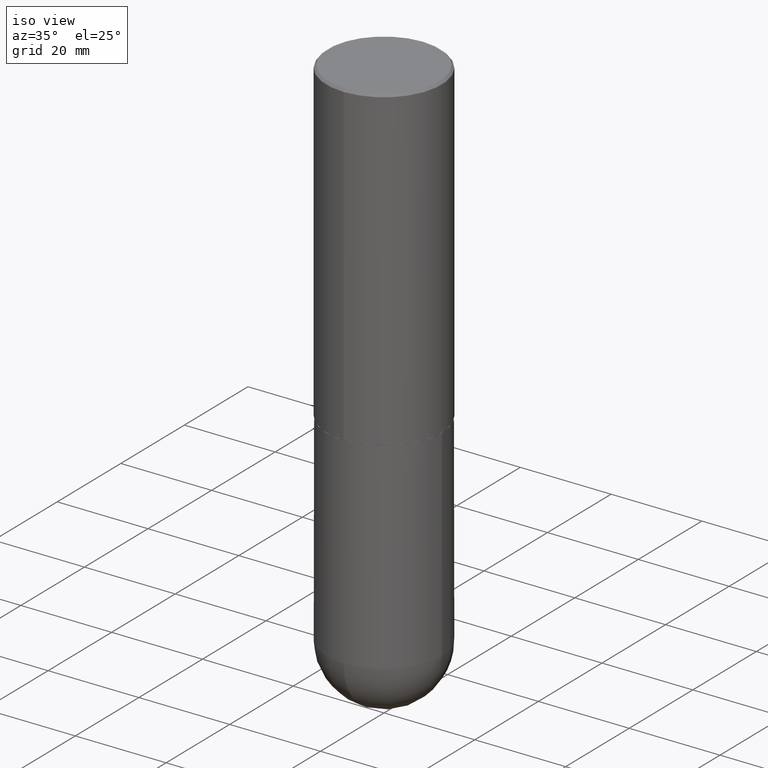
[diagram: clean part render]
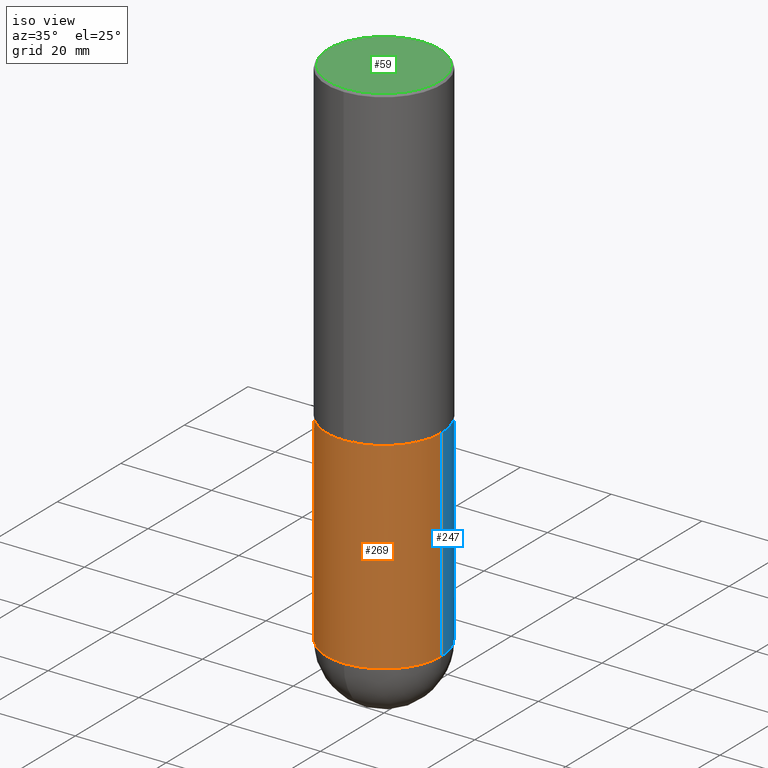
[diagram: same view with three faces highlighted in distinct colors, each labeled with its STEP entity id]
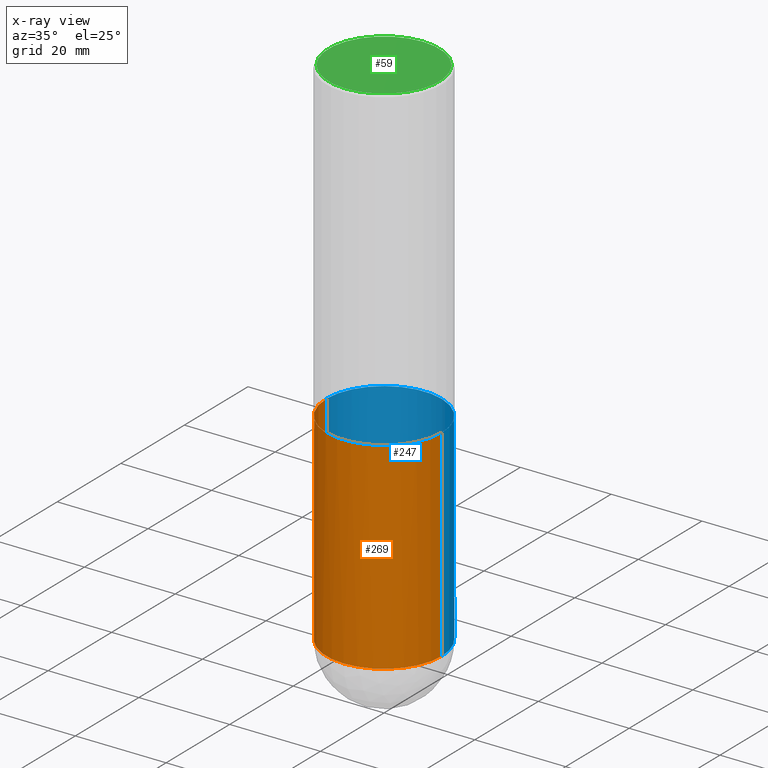
[diagram: x-ray of the same camera — body ghosted, the three highlighted faces saturated]
A machine part, iso view with three faces highlighted in distinct colors.
The next image is the same camera in x-ray (body ghosted, the three faces saturated) — at least one of them is partly hidden behind the body in this view.
Their STEP definitions:

[orange] entity #269 — the highlighted cylindrical surface (partial cylindrical patch) has radius 12.7 mm, axis along (-0, 0, 1).
#7 = VERTEX_POINT ( 'NONE', #305 ) ;
#12 = VERTEX_POINT ( 'NONE', #391 ) ;
#13 = AXIS2_PLACEMENT_3D ( 'NONE', #110, #72, #365 ) ;
#32 = ORIENTED_EDGE ( 'NONE', *, *, #64, .T. ) ;
#36 = CARTESIAN_POINT ( 'NONE',  ( 0.5000000000000000000, -3.491481338843133355E-15, 2.438088387897967896E-29 ) ) ;
#42 = ORIENTED_EDGE ( 'NONE', *, *, #153, .T. ) ;
#64 = EDGE_CURVE ( 'NONE', #88, #126, #345, .T. ) ;
#72 = DIRECTION ( 'NONE',  ( -2.445468806185136597E-29, 3.491481338843145583E-15, 1.000000000000000000 ) ) ;
#73 = CYLINDRICAL_SURFACE ( 'NONE', #13, 0.5000000000000000000 ) ;
#77 = DIRECTION ( 'NONE',  ( -2.445468806185136597E-29, 3.491481338843145583E-15, 1.000000000000000000 ) ) ;
#81 = EDGE_LOOP ( 'NONE', ( #228, #32, #134, #42, #84 ) ) ;
#84 = ORIENTED_EDGE ( 'NONE', *, *, #350, .F. ) ;
#88 = VERTEX_POINT ( 'NONE', #234 ) ;
#100 = CARTESIAN_POINT ( 'NONE',  ( -0.5000000000000000000, -9.103906174505900082E-15, -2.750000000000000000 ) ) ;
#101 = DIRECTION ( 'NONE',  ( -2.445468806185136877E-29, 3.491481338843145188E-15, 1.000000000000000000 ) ) ;
#110 = CARTESIAN_POINT ( 'NONE',  ( 0.000000000000000000, 0.000000000000000000, 0.000000000000000000 ) ) ;
#116 = EDGE_CURVE ( 'NONE', #126, #7, #121, .T. ) ;
#121 = CIRCLE ( 'NONE', #204, 0.5000000000000000000 ) ;
#125 = DIRECTION ( 'NONE',  ( 1.000000000000000000, -6.982962677686262766E-15, 0.000000000000000000 ) ) ;
#126 = VERTEX_POINT ( 'NONE', #129 ) ;
#129 = CARTESIAN_POINT ( 'NONE',  ( -3.552713678800393250E-15, -0.5000000000000160982, -4.499999999999998224 ) ) ;
#131 = VECTOR ( 'NONE', #294, 39.37007874015748143 ) ;
#134 = ORIENTED_EDGE ( 'NONE', *, *, #116, .T. ) ;
#152 = DIRECTION ( 'NONE',  ( 1.000000000000000000, -6.982962677686262766E-15, 0.000000000000000000 ) ) ;
#153 = EDGE_CURVE ( 'NONE', #7, #12, #354, .T. ) ;
#167 = VERTEX_POINT ( 'NONE', #100 ) ;
#171 = VECTOR ( 'NONE', #101, 39.37007874015748143 ) ;
#182 = FACE_OUTER_BOUND ( 'NONE', #81, .T. ) ;
#194 = DIRECTION ( 'NONE',  ( -2.445468806185136597E-29, 3.491481338843145583E-15, 1.000000000000000000 ) ) ;
#198 = LINE ( 'NONE', #385, #171 ) ;
#204 = AXIS2_PLACEMENT_3D ( 'NONE', #400, #194, #125 ) ;
#207 = CARTESIAN_POINT ( 'NONE',  ( 6.725039217009124520E-29, -9.601573681818649859E-15, -2.750000000000000000 ) ) ;
#217 = EDGE_CURVE ( 'NONE', #88, #167, #198, .T. ) ;
#228 = ORIENTED_EDGE ( 'NONE', *, *, #217, .F. ) ;
#233 = DIRECTION ( 'NONE',  ( 1.000000000000000000, -6.982962677686266711E-15, 0.000000000000000000 ) ) ;
#234 = CARTESIAN_POINT ( 'NONE',  ( -0.5000000000000000000, -9.103906174505904815E-15, -4.499999999999999112 ) ) ;
#268 = DIRECTION ( 'NONE',  ( -2.445468806185136597E-29, 3.491481338843145583E-15, 1.000000000000000000 ) ) ;
#269 = ADVANCED_FACE ( 'NONE', ( #182 ), #73, .T. ) ;
#284 = CIRCLE ( 'NONE', #402, 0.5000000000000000000 ) ;
#294 = DIRECTION ( 'NONE',  ( -2.445468806185136877E-29, 3.491481338843145188E-15, 1.000000000000000000 ) ) ;
#305 = CARTESIAN_POINT ( 'NONE',  ( 0.5000000000000000000, -1.614810119214953752E-14, -4.499999999999999112 ) ) ;
#313 = CARTESIAN_POINT ( 'NONE',  ( 1.100460962783311244E-28, -1.571166602479415374E-14, -4.499999999999999112 ) ) ;
#345 = CIRCLE ( 'NONE', #370, 0.5000000000000000000 ) ;
#350 = EDGE_CURVE ( 'NONE', #167, #12, #284, .T. ) ;
#354 = LINE ( 'NONE', #36, #131 ) ;
#365 = DIRECTION ( 'NONE',  ( 1.000000000000000000, -6.982962677686266711E-15, 4.876176775795935793E-29 ) ) ;
#370 = AXIS2_PLACEMENT_3D ( 'NONE', #313, #268, #152 ) ;
#385 = CARTESIAN_POINT ( 'NONE',  ( -0.5000000000000000000, 3.552713678800500929E-15, -2.459467545127452891E-29 ) ) ;
#391 = CARTESIAN_POINT ( 'NONE',  ( 0.5000000000000000000, -1.309305502066178321E-14, -2.750000000000000000 ) ) ;
#400 = CARTESIAN_POINT ( 'NONE',  ( 1.100460962783311244E-28, -1.571166602479415374E-14, -4.499999999999999112 ) ) ;
#402 = AXIS2_PLACEMENT_3D ( 'NONE', #207, #77, #233 ) ;

[blue] entity #247 — the highlighted cylindrical surface (partial cylindrical patch) has radius 12.7 mm, axis along (-0, 0, 1).
#7 = VERTEX_POINT ( 'NONE', #305 ) ;
#12 = VERTEX_POINT ( 'NONE', #391 ) ;
#18 = AXIS2_PLACEMENT_3D ( 'NONE', #169, #200, #358 ) ;
#29 = ORIENTED_EDGE ( 'NONE', *, *, #137, .F. ) ;
#36 = CARTESIAN_POINT ( 'NONE',  ( 0.5000000000000000000, -3.491481338843133355E-15, 2.438088387897967896E-29 ) ) ;
#53 = AXIS2_PLACEMENT_3D ( 'NONE', #271, #333, #187 ) ;
#56 = ORIENTED_EDGE ( 'NONE', *, *, #153, .F. ) ;
#66 = DIRECTION ( 'NONE',  ( 1.000000000000000000, -6.982962677686262766E-15, 0.000000000000000000 ) ) ;
#86 = CIRCLE ( 'NONE', #190, 0.5000000000000000000 ) ;
#88 = VERTEX_POINT ( 'NONE', #234 ) ;
#98 = EDGE_LOOP ( 'NONE', ( #351, #277, #29, #56, #192 ) ) ;
#100 = CARTESIAN_POINT ( 'NONE',  ( -0.5000000000000000000, -9.103906174505900082E-15, -2.750000000000000000 ) ) ;
#101 = DIRECTION ( 'NONE',  ( -2.445468806185136877E-29, 3.491481338843145188E-15, 1.000000000000000000 ) ) ;
#120 = VERTEX_POINT ( 'NONE', #249 ) ;
#131 = VECTOR ( 'NONE', #294, 39.37007874015748143 ) ;
#137 = EDGE_CURVE ( 'NONE', #12, #167, #344, .T. ) ;
#140 = CIRCLE ( 'NONE', #295, 0.5000000000000000000 ) ;
#153 = EDGE_CURVE ( 'NONE', #7, #12, #354, .T. ) ;
#167 = VERTEX_POINT ( 'NONE', #100 ) ;
#169 = CARTESIAN_POINT ( 'NONE',  ( 6.725039217009124520E-29, -9.601573681818649859E-15, -2.750000000000000000 ) ) ;
#171 = VECTOR ( 'NONE', #101, 39.37007874015748143 ) ;
#179 = EDGE_CURVE ( 'NONE', #120, #88, #86, .T. ) ;
#187 = DIRECTION ( 'NONE',  ( 1.000000000000000000, -6.982962677686266711E-15, 4.876176775795935793E-29 ) ) ;
#190 = AXIS2_PLACEMENT_3D ( 'NONE', #352, #388, #66 ) ;
#192 = ORIENTED_EDGE ( 'NONE', *, *, #254, .T. ) ;
#198 = LINE ( 'NONE', #385, #171 ) ;
#200 = DIRECTION ( 'NONE',  ( -2.445468806185136597E-29, 3.491481338843145583E-15, 1.000000000000000000 ) ) ;
#211 = CARTESIAN_POINT ( 'NONE',  ( 1.100460962783311244E-28, -1.571166602479415374E-14, -4.499999999999999112 ) ) ;
#217 = EDGE_CURVE ( 'NONE', #88, #167, #198, .T. ) ;
#234 = CARTESIAN_POINT ( 'NONE',  ( -0.5000000000000000000, -9.103906174505904815E-15, -4.499999999999999112 ) ) ;
#247 = ADVANCED_FACE ( 'NONE', ( #362 ), #266, .T. ) ;
#249 = CARTESIAN_POINT ( 'NONE',  ( 3.491481338843242218E-15, 0.4999999999999841238, -4.500000000000000888 ) ) ;
#254 = EDGE_CURVE ( 'NONE', #7, #120, #140, .T. ) ;
#266 = CYLINDRICAL_SURFACE ( 'NONE', #53, 0.5000000000000000000 ) ;
#271 = CARTESIAN_POINT ( 'NONE',  ( 0.000000000000000000, 0.000000000000000000, 0.000000000000000000 ) ) ;
#277 = ORIENTED_EDGE ( 'NONE', *, *, #217, .T. ) ;
#294 = DIRECTION ( 'NONE',  ( -2.445468806185136877E-29, 3.491481338843145188E-15, 1.000000000000000000 ) ) ;
#295 = AXIS2_PLACEMENT_3D ( 'NONE', #211, #390, #304 ) ;
#304 = DIRECTION ( 'NONE',  ( 1.000000000000000000, -6.982962677686262766E-15, 0.000000000000000000 ) ) ;
#305 = CARTESIAN_POINT ( 'NONE',  ( 0.5000000000000000000, -1.614810119214953752E-14, -4.499999999999999112 ) ) ;
#333 = DIRECTION ( 'NONE',  ( -2.445468806185136597E-29, 3.491481338843145583E-15, 1.000000000000000000 ) ) ;
#344 = CIRCLE ( 'NONE', #18, 0.5000000000000000000 ) ;
#351 = ORIENTED_EDGE ( 'NONE', *, *, #179, .T. ) ;
#352 = CARTESIAN_POINT ( 'NONE',  ( 1.100460962783311244E-28, -1.571166602479415374E-14, -4.499999999999999112 ) ) ;
#354 = LINE ( 'NONE', #36, #131 ) ;
#358 = DIRECTION ( 'NONE',  ( 1.000000000000000000, -6.982962677686266711E-15, 0.000000000000000000 ) ) ;
#362 = FACE_OUTER_BOUND ( 'NONE', #98, .T. ) ;
#385 = CARTESIAN_POINT ( 'NONE',  ( -0.5000000000000000000, 3.552713678800500929E-15, -2.459467545127452891E-29 ) ) ;
#388 = DIRECTION ( 'NONE',  ( -2.445468806185136597E-29, 3.491481338843145583E-15, 1.000000000000000000 ) ) ;
#390 = DIRECTION ( 'NONE',  ( -2.445468806185136597E-29, 3.491481338843145583E-15, 1.000000000000000000 ) ) ;
#391 = CARTESIAN_POINT ( 'NONE',  ( 0.5000000000000000000, -1.309305502066178321E-14, -2.750000000000000000 ) ) ;

[green] entity #59 — the highlighted planar face has unit normal (0, -0, -1).
#17 = DIRECTION ( 'NONE',  ( 6.982962677686265922E-15, 1.000000000000000000, -3.492399597108675869E-15 ) ) ;
#19 = DIRECTION ( 'NONE',  ( -2.444827589865469410E-29, 3.492399597108675474E-15, 1.000000000000000000 ) ) ;
#27 = ORIENTED_EDGE ( 'NONE', *, *, #162, .T. ) ;
#45 = CARTESIAN_POINT ( 'NONE',  ( -8.568113143938439245E-45, 1.223942130558119662E-30, 3.504587881556881194E-16 ) ) ;
#59 = ADVANCED_FACE ( 'NONE', ( #310 ), #213, .F. ) ;
#103 = AXIS2_PLACEMENT_3D ( 'NONE', #45, #19, #151 ) ;
#111 = VERTEX_POINT ( 'NONE', #272 ) ;
#133 = DIRECTION ( 'NONE',  ( -6.982962677686265922E-15, -1.000000000000000000, 3.492399597108675474E-15 ) ) ;
#150 = DIRECTION ( 'NONE',  ( 2.444827589865468849E-29, -3.492399597108675869E-15, -1.000000000000000000 ) ) ;
#151 = DIRECTION ( 'NONE',  ( -6.982962677686265922E-15, -1.000000000000000000, 3.492399597108675474E-15 ) ) ;
#162 = EDGE_CURVE ( 'NONE', #111, #223, #361, .T. ) ;
#177 = CARTESIAN_POINT ( 'NONE',  ( 3.421651712066268479E-15, 0.4799999999999995381, -1.325893018456474505E-15 ) ) ;
#213 = PLANE ( 'NONE',  #216 ) ;
#216 = AXIS2_PLACEMENT_3D ( 'NONE', #237, #150, #17 ) ;
#223 = VERTEX_POINT ( 'NONE', #177 ) ;
#230 = AXIS2_PLACEMENT_3D ( 'NONE', #327, #299, #133 ) ;
#237 = CARTESIAN_POINT ( 'NONE',  ( 3.351822085289404392E-15, 0.4799999999999995381, -1.501122412534318392E-15 ) ) ;
#272 = CARTESIAN_POINT ( 'NONE',  ( -3.361644018908048083E-15, -0.4799999999999995381, 2.026810594767851040E-15 ) ) ;
#291 = EDGE_LOOP ( 'NONE', ( #353, #27 ) ) ;
#299 = DIRECTION ( 'NONE',  ( -2.444827589865469410E-29, 3.492399597108675474E-15, 1.000000000000000000 ) ) ;
#310 = FACE_OUTER_BOUND ( 'NONE', #291, .T. ) ;
#327 = CARTESIAN_POINT ( 'NONE',  ( -8.568113143938439245E-45, 1.223942130558119662E-30, 3.504587881556881194E-16 ) ) ;
#332 = CIRCLE ( 'NONE', #103, 0.4799999999999995381 ) ;
#353 = ORIENTED_EDGE ( 'NONE', *, *, #409, .T. ) ;
#361 = CIRCLE ( 'NONE', #230, 0.4799999999999995381 ) ;
#409 = EDGE_CURVE ( 'NONE', #223, #111, #332, .T. ) ;